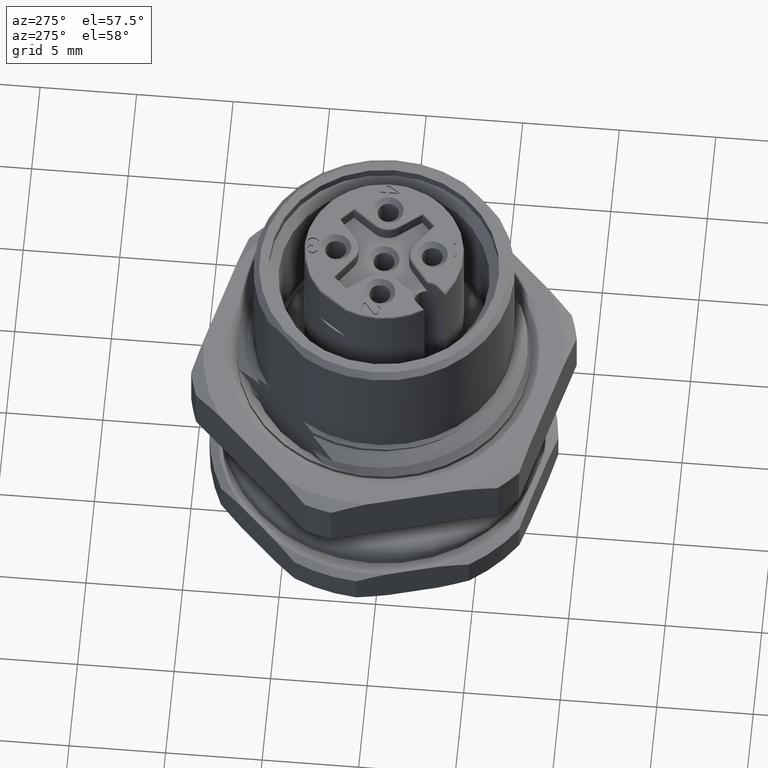
[diagram: clean part render]
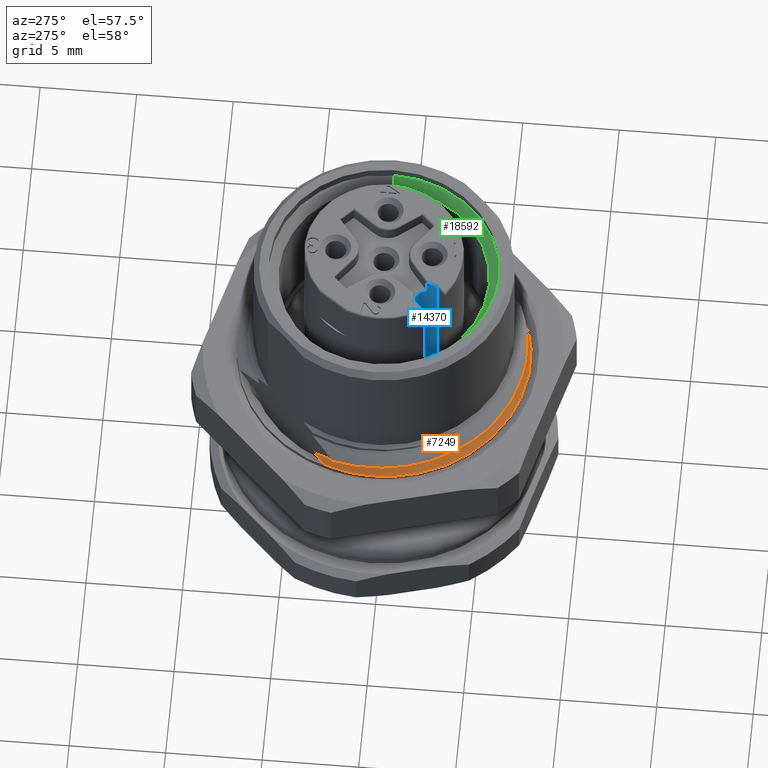
[diagram: same view with three faces highlighted in distinct colors, each labeled with its STEP entity id]
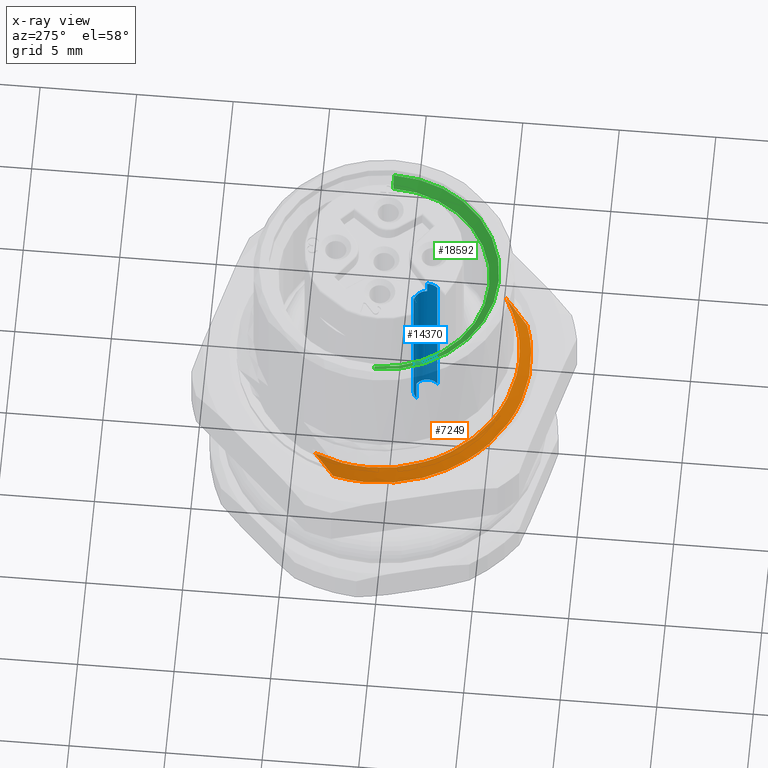
[diagram: x-ray of the same camera — body ghosted, the three highlighted faces saturated]
A machine part, auxiliary view with three faces highlighted in distinct colors.
The next image is the same camera in x-ray (body ghosted, the three faces saturated) — at least one of them is partly hidden behind the body in this view.
Their STEP definitions:

[orange] entity #7249 — the highlighted face is a freeform B-spline surface patch.
#234=CARTESIAN_POINT('',(2.408326112071E0,-7.208326112066E0,5.059859037932E0));
#241=CARTESIAN_POINT('',(3.629243574623E0,-5.987408600744E0,5.612017772684E0));
#242=CARTESIAN_POINT('',(3.497740060442E0,-6.118912114925E0,5.569062074736E0));
#243=CARTESIAN_POINT('',(3.232151632487E0,-6.384500614410E0,5.470755177221E0));
#244=CARTESIAN_POINT('',(2.827180580993E0,-6.789471636642E0,5.287294120184E0));
#245=CARTESIAN_POINT('',(2.549110328346E0,-7.067541895792E0,5.139728762799E0));
#246=CARTESIAN_POINT('',(2.408326112071E0,-7.208326112066E0,5.059859037932E0));
#443=CARTESIAN_POINT('',(-6.319278306977E0,3.014530882237E0,5.037332034844E0));
#444=CARTESIAN_POINT('',(-6.426504653360E0,2.789764583541E0,5.045312503033E0));
#445=CARTESIAN_POINT('',(-6.616930097875E0,2.328777422282E0,5.061286453504E0));
#446=CARTESIAN_POINT('',(-6.827325637619E0,1.610832386827E0,5.085219506423E0));
#447=CARTESIAN_POINT('',(-6.960040617408E0,8.745674875237E-1,5.109171174001E0));
#448=CARTESIAN_POINT('',(-7.013594650586E0,1.283718061825E-1,5.133117902835E0));
#449=CARTESIAN_POINT('',(-6.987387588835E0,-6.192940321619E-1,
5.157055558012E0));
#450=CARTESIAN_POINT('',(-6.881692918790E0,-1.359920240888E0,5.181001778862E0));
#451=CARTESIAN_POINT('',(-6.697722495417E0,-2.085066019625E0,5.204951555100E0));
#452=CARTESIAN_POINT('',(-6.437581478364E0,-2.786505052643E0,5.228891613797E0));
#453=CARTESIAN_POINT('',(-6.104214380755E0,-3.456253244654E0,5.252832837647E0));
#454=CARTESIAN_POINT('',(-5.701410102319E0,-4.086676192382E0,5.276784274723E0));
#455=CARTESIAN_POINT('',(-5.233764018070E0,-4.670624819656E0,5.300727612563E0));
#456=CARTESIAN_POINT('',(-4.706589879415E0,-5.201456797048E0,5.324664980331E0));
#457=CARTESIAN_POINT('',(-4.125875193989E0,-5.673110175649E0,5.348616191348E0));
#458=CARTESIAN_POINT('',(-3.498235307957E0,-6.080241859613E0,5.372562836524E0));
#459=CARTESIAN_POINT('',(-2.830808091977E0,-6.418228434029E0,5.396499022098E0));
#460=CARTESIAN_POINT('',(-2.131180226393E0,-6.683197846076E0,5.420447405420E0));
#461=CARTESIAN_POINT('',(-1.407312153985E0,-6.872150319580E0,5.444397061538E0));
#462=CARTESIAN_POINT('',(-6.674371089806E-1,-6.982952364998E0,
5.468334479141E0));
#463=CARTESIAN_POINT('',(8.002907712788E-2,-7.014321055412E0,5.492278442928E0));
#464=CARTESIAN_POINT('',(8.265844042924E-1,-6.965897998155E0,5.516230320612E0));
#465=CARTESIAN_POINT('',(1.563735633164E0,-6.838259628660E0,5.540170141132E0));
#466=CARTESIAN_POINT('',(2.283114326795E0,-6.632834261076E0,5.564111100406E0));
#467=CARTESIAN_POINT('',(2.976490823273E0,-6.351976003499E0,5.588058830334E0));
#468=CARTESIAN_POINT('',(3.416277205807E0,-6.116499803668E0,5.604034261512E0));
#469=CARTESIAN_POINT('',(3.629243574623E0,-5.987408600744E0,5.612017772684E0));
#492=CARTESIAN_POINT('',(2.408326112071E0,-7.208326112066E0,5.059859037932E0));
#493=CARTESIAN_POINT('',(2.162110626843E0,-7.290587537680E0,5.052193896343E0));
#494=CARTESIAN_POINT('',(1.661289020604E0,-7.429841287380E0,5.036865038863E0));
#495=CARTESIAN_POINT('',(8.928524780917E-1,-7.560763532833E0,5.013878284748E0));
#496=CARTESIAN_POINT('',(1.150491840742E-1,-7.612439846424E0,4.990891297712E0));
#497=CARTESIAN_POINT('',(-6.643009805883E-1,-7.584275314051E0,
4.967894263148E0));
#498=CARTESIAN_POINT('',(-1.436475830754E0,-7.476558210369E0,4.944903345532E0));
#499=CARTESIAN_POINT('',(-2.193440052122E0,-7.290484506532E0,4.921916902679E0));
#500=CARTESIAN_POINT('',(-2.927472092411E0,-7.027974024410E0,4.898928670702E0));
#501=CARTESIAN_POINT('',(-3.631109134690E0,-6.691603521565E0,4.875930304992E0));
#502=CARTESIAN_POINT('',(-4.296351793732E0,-6.285197322436E0,4.852942092029E0));
#503=CARTESIAN_POINT('',(-4.916509912034E0,-5.812943705646E0,4.829955623899E0));
#504=CARTESIAN_POINT('',(-5.485236482770E0,-5.279650459867E0,4.806964808319E0));
#505=CARTESIAN_POINT('',(-5.996562938205E0,-4.690811260091E0,4.783967651901E0));
#506=CARTESIAN_POINT('',(-6.444777510510E0,-4.053044684326E0,4.760980776635E0));
#507=CARTESIAN_POINT('',(-6.825439493127E0,-3.372802797419E0,4.737994074728E0));
#508=CARTESIAN_POINT('',(-7.031565886230E0,-2.895595072371E0,4.722665177318E0));
#509=CARTESIAN_POINT('',(-7.122161910437E0,-2.652321572034E0,4.714999999998E0));
#2217=CARTESIAN_POINT('',(-7.331487274722E0,2.002322236940E0,4.575170289158E0));
#2218=CARTESIAN_POINT('',(-7.214057565511E0,2.119751946151E0,4.640005348570E0));
#2219=CARTESIAN_POINT('',(-6.982519559194E0,2.351289909476E0,4.760634175586E0));
#2220=CARTESIAN_POINT('',(-6.647190226348E0,2.686619435790E0,4.913717486549E0));
#2221=CARTESIAN_POINT('',(-6.427693199104E0,2.906115990110E0,4.999025530671E0));
#2222=CARTESIAN_POINT('',(-6.319278306977E0,3.014530882237E0,5.037332034844E0));
#2229=CARTESIAN_POINT('',(-7.331487274722E0,2.002322236940E0,4.575170289158E0));
#2432=CARTESIAN_POINT('',(-7.122161910437E0,-2.652321572034E0,
4.714999999998E0));
#2433=CARTESIAN_POINT('',(-7.213987207800E0,-2.405747158817E0,
4.707230815943E0));
#2434=CARTESIAN_POINT('',(-7.371997234219E0,-1.903072430699E0,
4.691693055361E0));
#2435=CARTESIAN_POINT('',(-7.529554856618E0,-1.128627722664E0,
4.668388687464E0));
#2436=CARTESIAN_POINT('',(-7.605983845993E0,-3.420542325152E-1,
4.645085241369E0));
#2437=CARTESIAN_POINT('',(-7.600467592537E0,4.482046803565E-1,
4.621781788339E0));
#2438=CARTESIAN_POINT('',(-7.513062495896E0,1.233661277359E0,4.598477556755E0));
#2439=CARTESIAN_POINT('',(-7.400810314607E0,1.748496466353E0,4.582939606709E0));
#2440=CARTESIAN_POINT('',(-7.331487274722E0,2.002322236940E0,4.575170289158E0));
#6265=VERTEX_POINT('',#443);
#6266=VERTEX_POINT('',#469);
#6313=CARTESIAN_POINT('',(-7.122161910437E0,-2.652321572034E0,
4.714999999998E0));
#6314=VERTEX_POINT('',#6313);
#6397=VERTEX_POINT('',#2229);
#6403=VERTEX_POINT('',#234);
#7194=CARTESIAN_POINT('',(3.629198630206E0,-5.987448145621E0,5.612008352824E0));
#7195=CARTESIAN_POINT('',(2.990332066662E0,-6.374687183172E0,5.588063749978E0));
#7196=CARTESIAN_POINT('',(1.587711246829E0,-6.942830870733E0,5.540174544287E0));
#7197=CARTESIAN_POINT('',(-6.776250911225E-1,-7.089759561536E0,
5.468340735751E0));
#7198=CARTESIAN_POINT('',(-2.874091091729E0,-6.516394792275E0,
5.396506927214E0));
#7199=CARTESIAN_POINT('',(-4.778574564732E0,-5.281008921523E0,
5.324673118677E0));
#7200=CARTESIAN_POINT('',(-6.197580880424E0,-3.509101298473E0,
5.252839310140E0));
#7201=CARTESIAN_POINT('',(-6.986954862295E0,-1.380698430781E0,
5.181005501604E0));
#7202=CARTESIAN_POINT('',(-7.066482565971E0,8.880043061536E-1,
5.109171693067E0));
#7203=CARTESIAN_POINT('',(-6.640927898187E0,2.340256225993E0,5.061282487376E0));
#7204=CARTESIAN_POINT('',(-6.319274709524E0,3.014529007915E0,5.037337884530E0));
#7205=CARTESIAN_POINT('',(3.732613778512E0,-6.158062350310E0,5.444600301151E0));
#7206=CARTESIAN_POINT('',(3.075542512733E0,-6.556335885164E0,5.420655698306E0));
#7207=CARTESIAN_POINT('',(1.632953574623E0,-7.140669004524E0,5.372766492615E0));
#7208=CARTESIAN_POINT('',(-6.969342297048E-1,-7.291784474255E0,
5.300932684078E0));
#7209=CARTESIAN_POINT('',(-2.955989214918E0,-6.702081496841E0,
5.229098875541E0));
#7210=CARTESIAN_POINT('',(-4.914741539222E0,-5.431492919912E0,
5.157265067004E0));
#7211=CARTESIAN_POINT('',(-6.374182883012E0,-3.609094235807E0,
5.085431258468E0));
#7212=CARTESIAN_POINT('',(-7.186050323005E0,-1.420041863736E0,
5.013597449931E0));
#7213=CARTESIAN_POINT('',(-7.267844193432E0,9.133082661661E-1,
4.941763641394E0));
#7214=CARTESIAN_POINT('',(-6.830163212495E0,2.406942557975E0,4.893874435703E0));
#7215=CARTESIAN_POINT('',(-6.499344415775E0,3.100428953382E0,4.869929832858E0));
#7216=CARTESIAN_POINT('',(3.836028926817E0,-6.328676554998E0,5.277192249478E0));
#7217=CARTESIAN_POINT('',(3.160752958803E0,-6.737984587156E0,5.253247646632E0));
#7218=CARTESIAN_POINT('',(1.678195902417E0,-7.338507138315E0,5.205358440941E0));
#7219=CARTESIAN_POINT('',(-7.162433682867E-1,-7.493809386973E0,
5.133524632404E0));
#7220=CARTESIAN_POINT('',(-3.037887338107E0,-6.887768201408E0,
5.061690823868E0));
#7221=CARTESIAN_POINT('',(-5.050908513712E0,-5.581976918301E0,
4.989857015331E0));
#7222=CARTESIAN_POINT('',(-6.550784885599E0,-3.709087173141E0,
4.918023206794E0));
#7223=CARTESIAN_POINT('',(-7.385145783714E0,-1.459385296690E0,
4.846189398257E0));
#7224=CARTESIAN_POINT('',(-7.469205820893E0,9.386122261782E-1,
4.774355589721E0));
#7225=CARTESIAN_POINT('',(-7.019398526805E0,2.473628889957E0,4.726466384030E0));
#7226=CARTESIAN_POINT('',(-6.679414122026E0,3.186328898849E0,4.702521781184E0));
#7227=CARTESIAN_POINT('',(3.939444075123E0,-6.499290759687E0,5.109784197805E0));
#7228=CARTESIAN_POINT('',(3.245963404873E0,-6.919633289148E0,5.085839594960E0));
#7229=CARTESIAN_POINT('',(1.723438230211E0,-7.536345272106E0,5.037950389269E0));
#7230=CARTESIAN_POINT('',(-7.355525068692E-1,-7.695834299692E0,
4.966116580732E0));
#7231=CARTESIAN_POINT('',(-3.119785461296E0,-7.073454905974E0,
4.894282772195E0));
#7232=CARTESIAN_POINT('',(-5.187075488203E0,-5.732460916690E0,
4.822448963658E0));
#7233=CARTESIAN_POINT('',(-6.727386888187E0,-3.809080110474E0,
4.750615155122E0));
#7234=CARTESIAN_POINT('',(-7.584241244424E0,-1.498728729644E0,
4.678781346585E0));
#7235=CARTESIAN_POINT('',(-7.670567448354E0,9.639161861909E-1,
4.606947538048E0));
#7236=CARTESIAN_POINT('',(-7.208633841114E0,2.540315221939E0,4.559058332357E0));
#7237=CARTESIAN_POINT('',(-6.859483828278E0,3.272228844316E0,4.535113729512E0));
#7238=B_SPLINE_SURFACE_WITH_KNOTS('',3,3,((#7194,#7195,#7196,#7197,#7198,#7199,
#7200,#7201,#7202,#7203,#7204),(#7205,#7206,#7207,#7208,#7209,#7210,#7211,#7212,
#7213,#7214,#7215),(#7216,#7217,#7218,#7219,#7220,#7221,#7222,#7223,#7224,#7225,
#7226),(#7227,#7228,#7229,#7230,#7231,#7232,#7233,#7234,#7235,#7236,#7237)),
.UNSPECIFIED.,.F.,.F.,.F.,(4,4),(4,1,1,1,1,1,1,1,4),(1.066754611473E-1,
9.999999999978E-1),(6.753985255745E-1,6.883182753113E-1,7.012380250482E-1,
7.141577747850E-1,7.270775245218E-1,7.399972742586E-1,7.529170239954E-1,
7.658367737323E-1,7.787565234691E-1),.UNSPECIFIED.);
#7239=ORIENTED_EDGE('',*,*,#7173,.T.);
#7240=ORIENTED_EDGE('',*,*,#6804,.T.);
#7242=ORIENTED_EDGE('',*,*,#7241,.T.);
#7244=ORIENTED_EDGE('',*,*,#7243,.T.);
#7246=ORIENTED_EDGE('',*,*,#7245,.T.);
#7247=EDGE_LOOP('',(#7239,#7240,#7242,#7244,#7246));
#7248=FACE_OUTER_BOUND('',#7247,.F.);
#247=B_SPLINE_CURVE_WITH_KNOTS('',3,(#241,#242,#243,#244,#245,#246),
.UNSPECIFIED.,.F.,.F.,(4,1,1,4),(0.E0,3.333333333333E-1,6.666666666667E-1,1.E0),
.UNSPECIFIED.);
#470=B_SPLINE_CURVE_WITH_KNOTS('',3,(#443,#444,#445,#446,#447,#448,#449,#450,
#451,#452,#453,#454,#455,#456,#457,#458,#459,#460,#461,#462,#463,#464,#465,#466,
#467,#468,#469),.UNSPECIFIED.,.F.,.F.,(4,1,1,1,1,1,1,1,1,1,1,1,1,1,1,1,1,1,1,1,
1,1,1,1,4),(0.E0,4.166666666667E-2,8.333333333333E-2,1.25E-1,1.666666666667E-1,
2.083333333333E-1,2.5E-1,2.916666666667E-1,3.333333333333E-1,3.75E-1,
4.166666666667E-1,4.583333333333E-1,5.E-1,5.416666666667E-1,5.833333333333E-1,
6.25E-1,6.666666666667E-1,7.083333333333E-1,7.5E-1,7.916666666667E-1,
8.333333333333E-1,8.75E-1,9.166666666667E-1,9.583333333333E-1,1.E0),
.UNSPECIFIED.);
#510=B_SPLINE_CURVE_WITH_KNOTS('',3,(#492,#493,#494,#495,#496,#497,#498,#499,
#500,#501,#502,#503,#504,#505,#506,#507,#508,#509),.UNSPECIFIED.,.F.,.F.,(4,1,1,
1,1,1,1,1,1,1,1,1,1,1,1,4),(0.E0,6.666666666667E-2,1.333333333333E-1,2.E-1,
2.666666666667E-1,3.333333333333E-1,4.E-1,4.666666666667E-1,5.333333333333E-1,
6.E-1,6.666666666667E-1,7.333333333333E-1,8.E-1,8.666666666667E-1,
9.333333333333E-1,1.E0),.UNSPECIFIED.);
#2223=B_SPLINE_CURVE_WITH_KNOTS('',3,(#2217,#2218,#2219,#2220,#2221,#2222),
.UNSPECIFIED.,.F.,.F.,(4,1,1,4),(0.E0,3.333333333333E-1,6.666666666667E-1,1.E0),
.UNSPECIFIED.);
#2441=B_SPLINE_CURVE_WITH_KNOTS('',3,(#2432,#2433,#2434,#2435,#2436,#2437,#2438,
#2439,#2440),.UNSPECIFIED.,.F.,.F.,(4,1,1,1,1,1,4),(0.E0,1.666666666667E-1,
3.333333333333E-1,5.E-1,6.666666666667E-1,8.333333333333E-1,1.E0),
.UNSPECIFIED.);
#6804=EDGE_CURVE('',#6266,#6403,#247,.T.);
#7173=EDGE_CURVE('',#6265,#6266,#470,.T.);
#7241=EDGE_CURVE('',#6403,#6314,#510,.T.);
#7243=EDGE_CURVE('',#6314,#6397,#2441,.T.);
#7245=EDGE_CURVE('',#6397,#6265,#2223,.T.);
#7249=ADVANCED_FACE('',(#7248),#7238,.F.);

[blue] entity #14370 — the highlighted cylindrical surface (edge-blend (fillet) strip) has radius 0.7 mm, axis along (0, 0, 1).
#4210=DIRECTION('',(0.E0,0.E0,1.E0));
#4211=VECTOR('',#4210,7.E-1);
#4212=CARTESIAN_POINT('',(-1.741710086518E0,-2.384168919186E0,1.42E1));
#4213=LINE('',#4212,#4211);
#4218=CARTESIAN_POINT('',(-2.439518395094E0,-2.439518395094E0,1.49E1));
#4219=DIRECTION('',(0.E0,0.E0,-1.E0));
#4220=DIRECTION('',(9.968690122505E-1,7.907067986735E-2,0.E0));
#4221=AXIS2_PLACEMENT_3D('',#4218,#4219,#4220);
#4223=DIRECTION('',(-2.028300233084E-11,-2.028324368367E-11,-1.E0));
#4224=VECTOR('',#4223,9.2E0);
#4225=CARTESIAN_POINT('',(-1.944543648481E0,-2.934493142142E0,1.49E1));
#4226=LINE('',#4225,#4224);
#4227=CARTESIAN_POINT('',(-2.439518395094E0,-2.439518395094E0,5.7E0));
#4228=DIRECTION('',(0.E0,0.E0,-1.E0));
#4229=DIRECTION('',(-7.071067811865E-1,7.071067811865E-1,0.E0));
#4230=AXIS2_PLACEMENT_3D('',#4227,#4228,#4229);
#4232=CARTESIAN_POINT('',(-2.439518395094E0,-2.439518395094E0,1.49E1));
#4233=DIRECTION('',(0.E0,0.E0,-1.E0));
#4234=DIRECTION('',(-7.071067811865E-1,7.071067811865E-1,0.E0));
#4235=AXIS2_PLACEMENT_3D('',#4232,#4233,#4234);
#4294=DIRECTION('',(3.132754925038E-11,3.132747684453E-11,-1.E0));
#4295=VECTOR('',#4294,9.2E0);
#4296=CARTESIAN_POINT('',(-2.934493142484E0,-1.944543648823E0,1.49E1));
#4297=LINE('',#4296,#4295);
#4351=DIRECTION('',(0.E0,0.E0,1.E0));
#4352=VECTOR('',#4351,7.E-1);
#4353=CARTESIAN_POINT('',(-2.384168919186E0,-1.741710086518E0,1.42E1));
#4354=LINE('',#4353,#4352);
#4365=CARTESIAN_POINT('',(-2.439518395094E0,-2.439518395094E0,1.42E1));
#4366=DIRECTION('',(0.E0,0.E0,1.E0));
#4367=DIRECTION('',(9.968690122505E-1,7.907067986735E-2,0.E0));
#4368=AXIS2_PLACEMENT_3D('',#4365,#4366,#4367);
#5659=CARTESIAN_POINT('',(-2.384168919186E0,-1.741710086518E0,1.49E1));
#5661=VERTEX_POINT('',#5659);
#5708=CARTESIAN_POINT('',(-1.741710086518E0,-2.384168919186E0,1.49E1));
#5710=VERTEX_POINT('',#5708);
#6155=CARTESIAN_POINT('',(-1.944543648667E0,-2.934493142328E0,5.7E0));
#6156=VERTEX_POINT('',#6155);
#6159=CARTESIAN_POINT('',(-2.934493141924E0,-1.944543648263E0,5.7E0));
#6160=VERTEX_POINT('',#6159);
#6175=CARTESIAN_POINT('',(-1.944543648263E0,-2.934493141924E0,1.49E1));
#6176=VERTEX_POINT('',#6175);
#6177=CARTESIAN_POINT('',(-2.934493141924E0,-1.944543648263E0,1.49E1));
#6178=VERTEX_POINT('',#6177);
#6181=CARTESIAN_POINT('',(-1.741710086518E0,-2.384168919186E0,1.42E1));
#6182=CARTESIAN_POINT('',(-2.384168919186E0,-1.741710086518E0,1.42E1));
#6183=VERTEX_POINT('',#6181);
#6184=VERTEX_POINT('',#6182);
#14348=CARTESIAN_POINT('',(-2.439518395094E0,-2.439518395094E0,1.5E1));
#14349=DIRECTION('',(0.E0,0.E0,1.E0));
#14350=DIRECTION('',(-1.E0,0.E0,0.E0));
#14351=AXIS2_PLACEMENT_3D('',#14348,#14349,#14350);
#14352=CYLINDRICAL_SURFACE('',#14351,7.E-1);
#14354=ORIENTED_EDGE('',*,*,#14353,.T.);
#14356=ORIENTED_EDGE('',*,*,#14355,.T.);
#14358=ORIENTED_EDGE('',*,*,#14357,.F.);
#14360=ORIENTED_EDGE('',*,*,#14359,.F.);
#14362=ORIENTED_EDGE('',*,*,#14361,.T.);
#14364=ORIENTED_EDGE('',*,*,#14363,.F.);
#14366=ORIENTED_EDGE('',*,*,#14365,.F.);
#14367=ORIENTED_EDGE('',*,*,#14327,.T.);
#14368=EDGE_LOOP('',(#14354,#14356,#14358,#14360,#14362,#14364,#14366,#14367));
#14369=FACE_OUTER_BOUND('',#14368,.F.);
#4222=CIRCLE('',#4221,7.E-1);
#4231=CIRCLE('',#4230,7.E-1);
#4236=CIRCLE('',#4235,7.E-1);
#4369=CIRCLE('',#4368,7.E-1);
#14327=EDGE_CURVE('',#6183,#5710,#4213,.T.);
#14353=EDGE_CURVE('',#5710,#6176,#4222,.T.);
#14355=EDGE_CURVE('',#6176,#6156,#4226,.T.);
#14357=EDGE_CURVE('',#6160,#6156,#4231,.T.);
#14359=EDGE_CURVE('',#6178,#6160,#4297,.T.);
#14361=EDGE_CURVE('',#6178,#5661,#4236,.T.);
#14363=EDGE_CURVE('',#6184,#5661,#4354,.T.);
#14365=EDGE_CURVE('',#6183,#6184,#4369,.T.);
#14370=ADVANCED_FACE('',(#14369),#14352,.F.);

[green] entity #18592 — the highlighted conical surface has half-angle 45 deg.
#3333=DIRECTION('',(7.071067811865E-1,0.E0,-7.071067811865E-1));
#3334=VECTOR('',#3333,7.071067811865E-1);
#3335=CARTESIAN_POINT('',(-5.95E0,0.E0,1.295E1));
#3336=LINE('',#3335,#3334);
#3342=DIRECTION('',(-7.071067811866E-1,0.E0,-7.071067811865E-1));
#3343=VECTOR('',#3342,7.071067811865E-1);
#3344=CARTESIAN_POINT('',(5.95E0,0.E0,1.295E1));
#3345=LINE('',#3344,#3343);
#5569=CARTESIAN_POINT('',(0.E0,0.E0,1.245E1));
#5570=DIRECTION('',(0.E0,0.E0,-1.E0));
#5571=DIRECTION('',(1.E0,0.E0,0.E0));
#5572=AXIS2_PLACEMENT_3D('',#5569,#5570,#5571);
#5574=CARTESIAN_POINT('',(0.E0,0.E0,1.295E1));
#5575=DIRECTION('',(0.E0,0.E0,-1.E0));
#5576=DIRECTION('',(1.E0,0.E0,0.E0));
#5577=AXIS2_PLACEMENT_3D('',#5574,#5575,#5576);
#6441=CARTESIAN_POINT('',(5.95E0,0.E0,1.295E1));
#6442=CARTESIAN_POINT('',(-5.95E0,0.E0,1.295E1));
#6443=VERTEX_POINT('',#6441);
#6444=VERTEX_POINT('',#6442);
#6449=CARTESIAN_POINT('',(5.45E0,0.E0,1.245E1));
#6450=CARTESIAN_POINT('',(-5.45E0,0.E0,1.245E1));
#6451=VERTEX_POINT('',#6449);
#6452=VERTEX_POINT('',#6450);
#18581=CARTESIAN_POINT('',(0.E0,0.E0,1.27E1));
#18582=DIRECTION('',(0.E0,0.E0,1.E0));
#18583=DIRECTION('',(-1.E0,0.E0,0.E0));
#18584=AXIS2_PLACEMENT_3D('',#18581,#18582,#18583);
#18585=CONICAL_SURFACE('',#18584,5.7E0,4.5E1);
#18586=ORIENTED_EDGE('',*,*,#18563,.F.);
#18587=ORIENTED_EDGE('',*,*,#13120,.F.);
#18588=ORIENTED_EDGE('',*,*,#13066,.T.);
#18589=ORIENTED_EDGE('',*,*,#13117,.T.);
#18590=EDGE_LOOP('',(#18586,#18587,#18588,#18589));
#18591=FACE_OUTER_BOUND('',#18590,.F.);
#5573=CIRCLE('',#5572,5.45E0);
#5578=CIRCLE('',#5577,5.95E0);
#13066=EDGE_CURVE('',#6443,#6444,#5578,.T.);
#13117=EDGE_CURVE('',#6444,#6452,#3336,.T.);
#13120=EDGE_CURVE('',#6443,#6451,#3345,.T.);
#18563=EDGE_CURVE('',#6451,#6452,#5573,.T.);
#18592=ADVANCED_FACE('',(#18591),#18585,.F.);